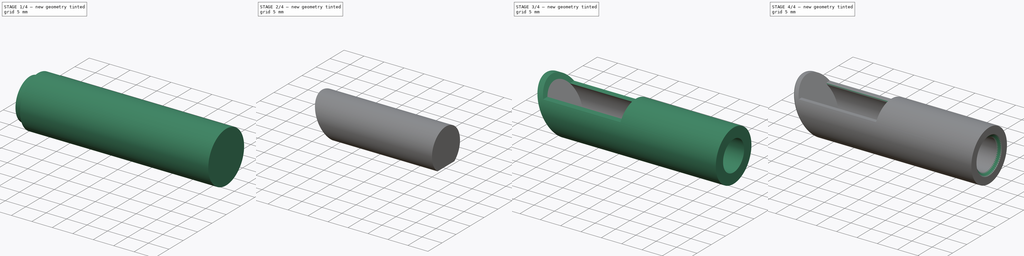
[diagram: build sequence overview — one tinted view per stage of 4, left to right]
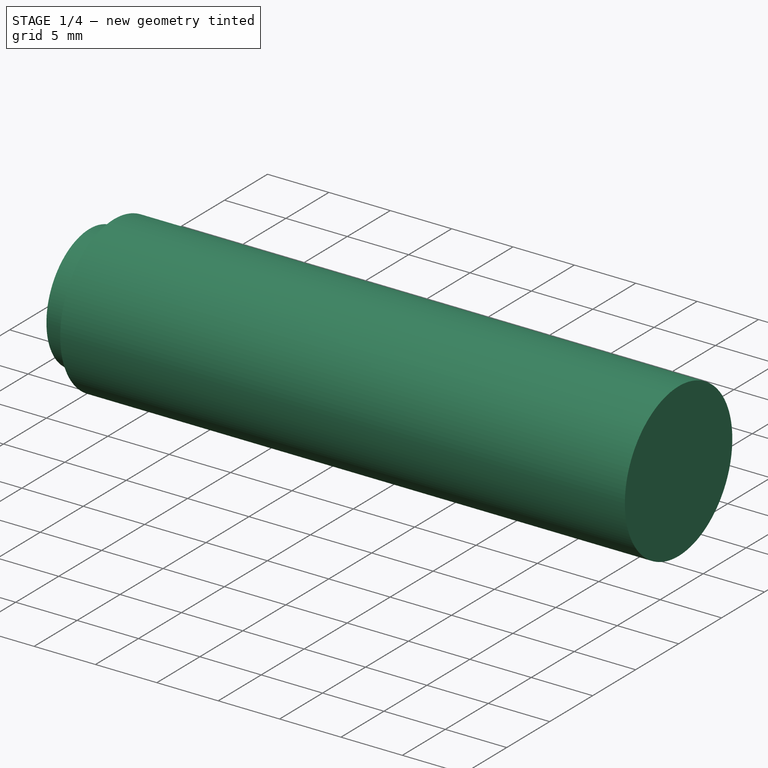
[diagram: stage 1 of 4 — iso view after this stage's code; geometry added in this stage tinted green]
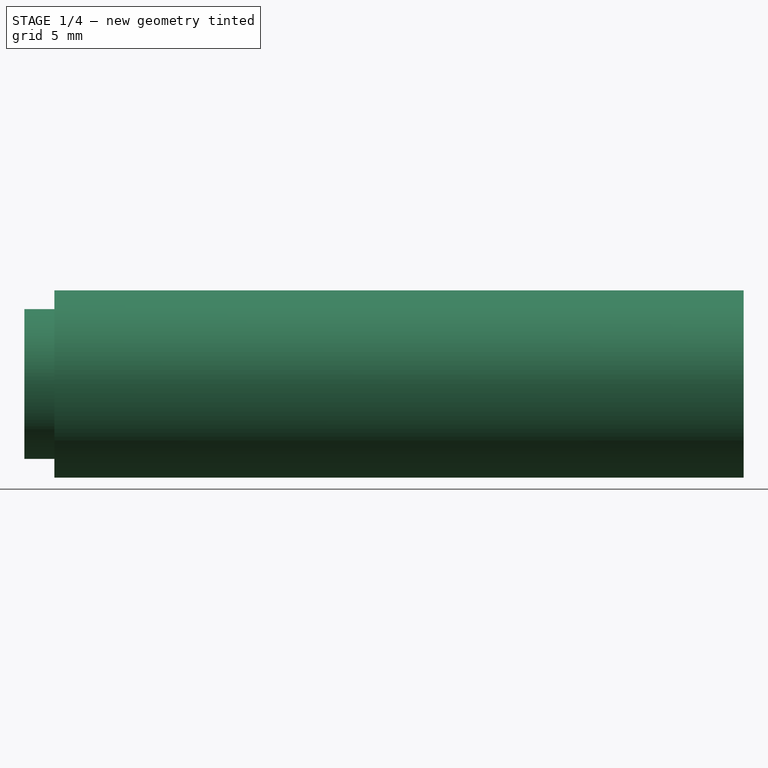
[diagram: stage 1 of 4 — front view after this stage's code; geometry added in this stage tinted green]
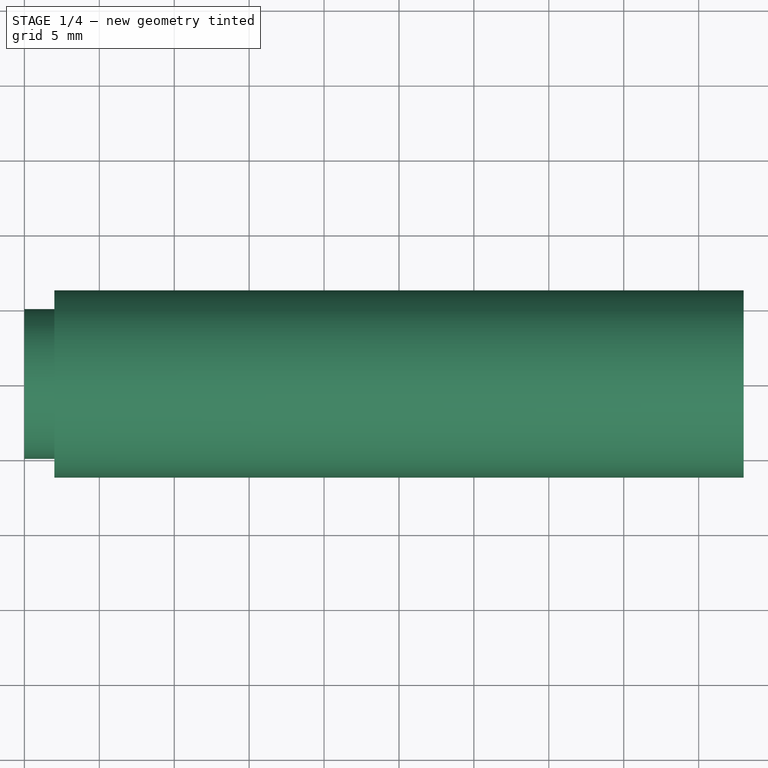
[diagram: stage 1 of 4 — top view after this stage's code; geometry added in this stage tinted green]
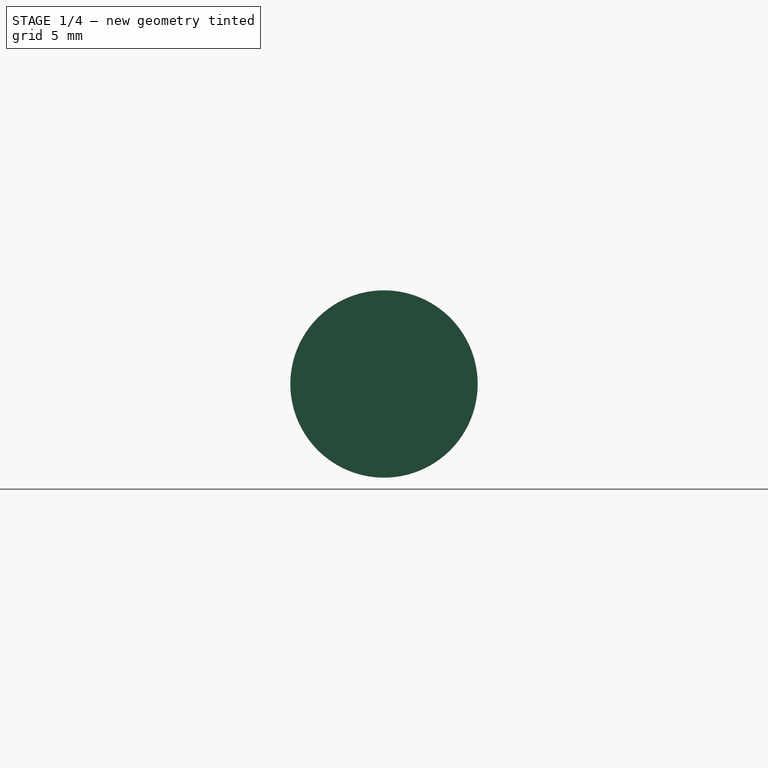
[diagram: stage 1 of 4 — right view after this stage's code; geometry added in this stage tinted green]
FCSTD DOCUMENT  (FreeCAD 0.20R29603 (Git))
Label: smallFloodLight
License: All rights reserved
LicenseURL: http://en.wikipedia.org/wiki/All_rights_reserved
objects: PartDesign::AdditiveCylinder×3, Sketcher::SketchObject×3, PartDesign::Pocket×3, PartDesign::Body×2, PartDesign::ShapeBinder×1, PartDesign::Boolean×1, PartDesign::Fillet×1, PartDesign::Chamfer×1
note: 23 computed .brp shape members not serialized (recipe doc carries the construction recipe); baked Part::Feature solids carry a one-line shape summary decoded from their .brp

FEATURE [PartDesign::AdditiveCylinder] Cylinder
  Angle = 360
  AttacherType = Attacher::AttachEngine3D
  AttachmentOffset = pos=(0,0,-23) rot=(0,0,1;0rad)
  FirstAngle = 0
  Height = 46
  MapMode = 5
  Placement = pos=(-23,5.1e-15,-5.1e-15) rot=(0.57735,0.57735,0.57735;2.0944rad)
  Radius = 6.25
  SecondAngle = 0
  Support = -> [YZ_Plane]
FEATURE [PartDesign::ShapeBinder] ShapeBinder
  Placement = pos=(-23,5e-15,-5e-15) rot=(0.57735,0.57735,0.57735;2.0944rad)
  Support = -> [Pocket]
  TraceSupport = false
FEATURE [PartDesign::AdditiveCylinder] Cylinder001
  Angle = 360
  AttacherType = Attacher::AttachEngine3D
  AttachmentOffset = pos=(0,0,-25) rot=(0,0,1;0rad)
  FirstAngle = 0
  Height = 35
  MapMode = 5
  Placement = pos=(-25,5.6e-15,-5.6e-15) rot=(0.57735,0.57735,0.57735;2.0944rad)
  Radius = 5
  SecondAngle = 0
  Support = -> [YZ_Plane001]
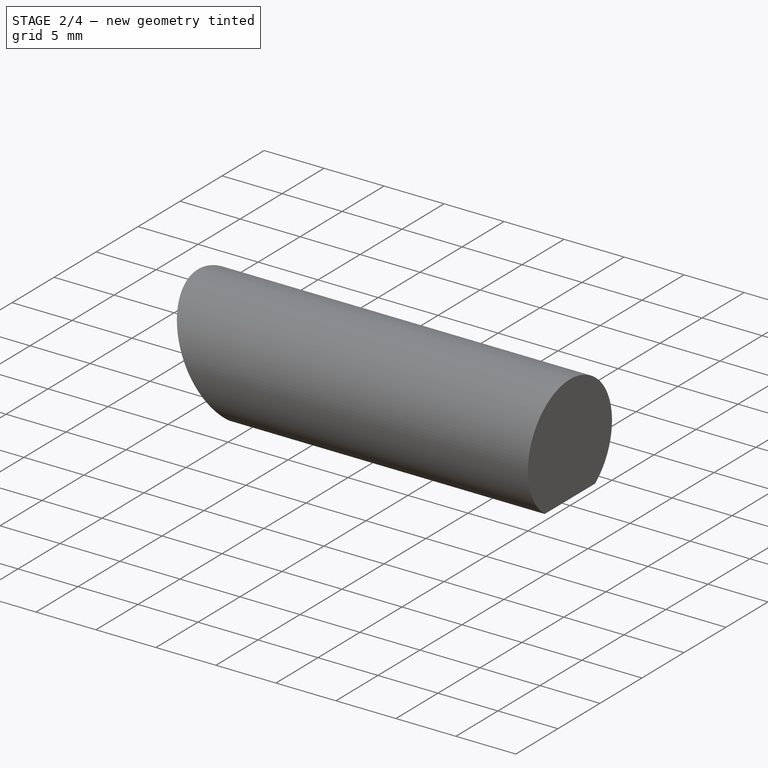
[diagram: stage 2 of 4 — iso view after this stage's code; geometry added in this stage tinted green]
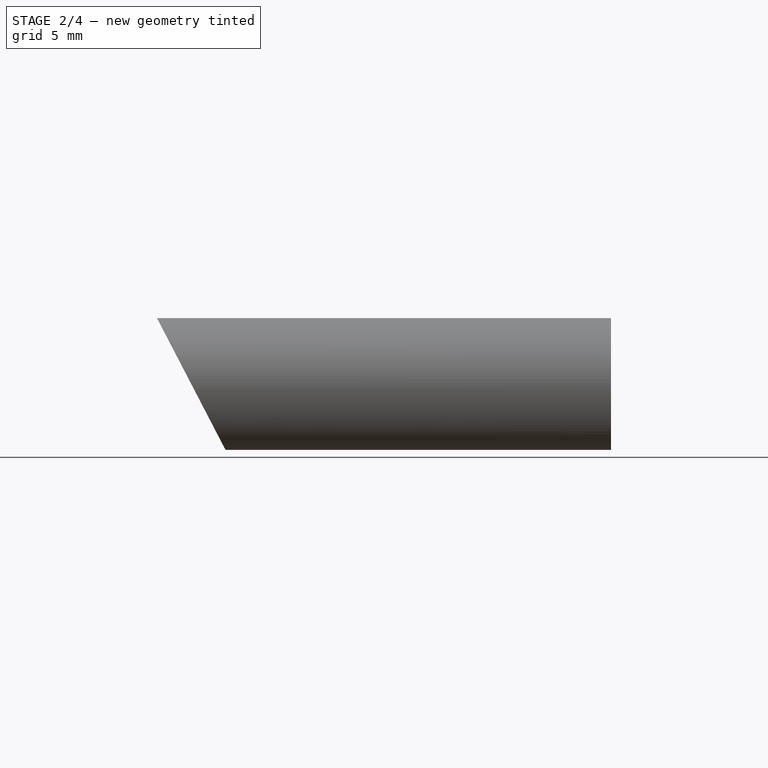
[diagram: stage 2 of 4 — front view after this stage's code; geometry added in this stage tinted green]
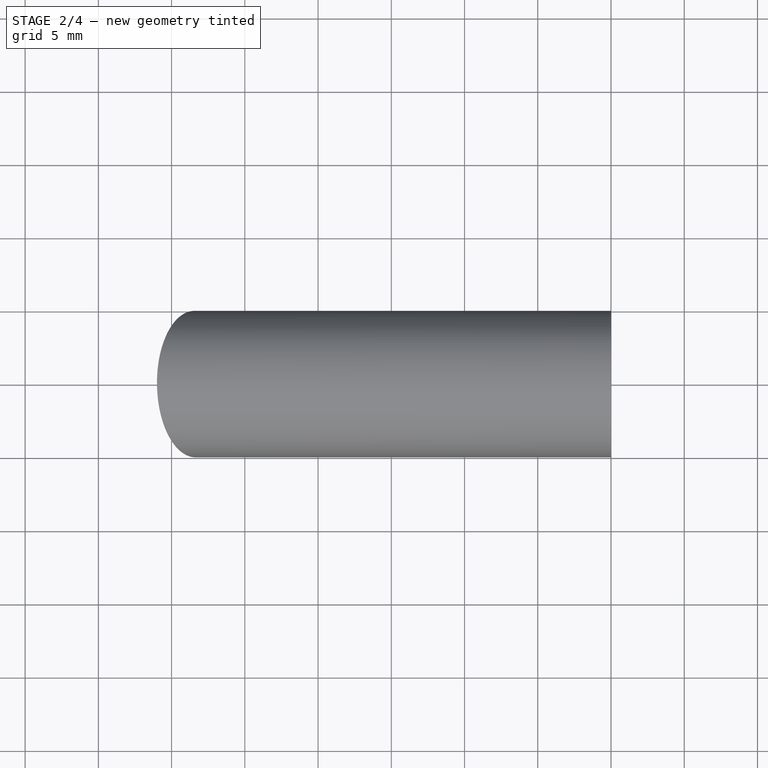
[diagram: stage 2 of 4 — top view after this stage's code; geometry added in this stage tinted green]
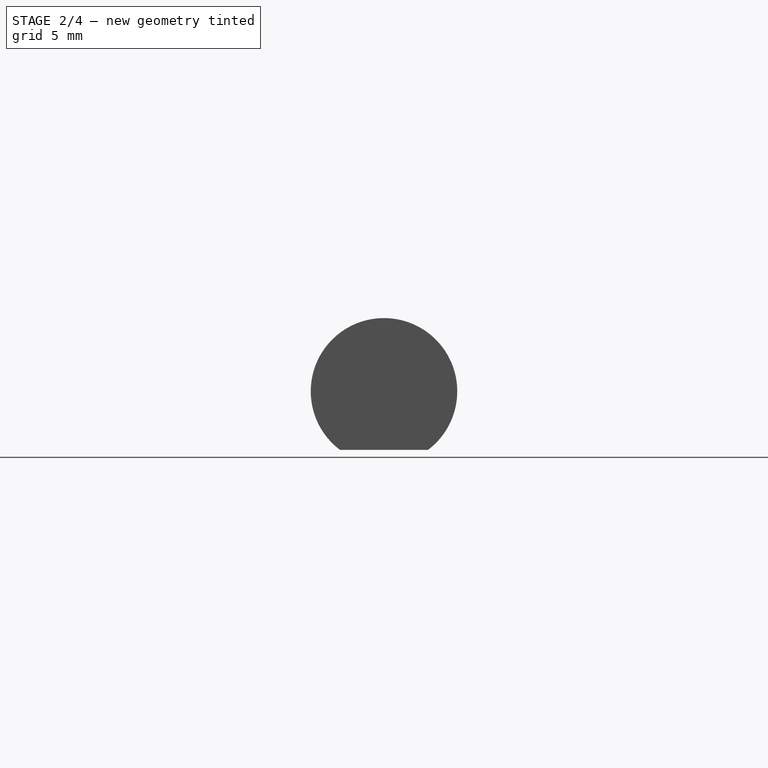
[diagram: stage 2 of 4 — right view after this stage's code; geometry added in this stage tinted green]
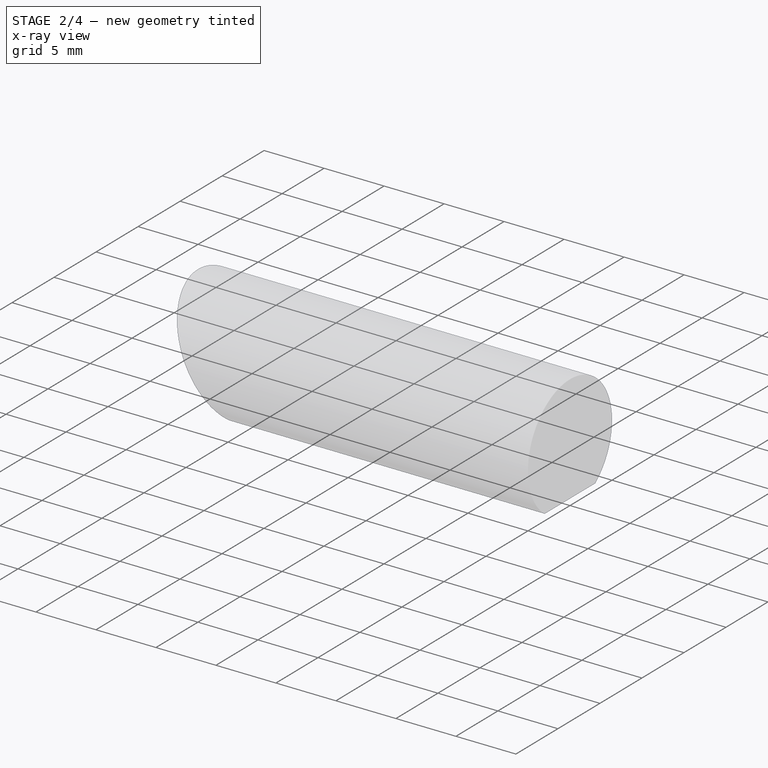
[diagram: stage 2 of 4 — x-ray composite at the iso view; earlier geometry ghosted, this stage's added geometry solid]
FEATURE [Sketcher::SketchObject] Sketch
  ExternalGeometry = -> [Cylinder]
  FullyConstrained = true
  MapMode = 5
  Placement = pos=(0,0,0) rot=(1,0,0;1.5708rad)
  Support = -> [XZ_Plane]
  expr: Constraints[6] = 38 - 31.5
  sketch-geometry (3):
    g0: LineSegment StartX=-23 StartY=6.25 StartZ=0 EndX=-16.5 EndY=-6.25 EndZ=0
    g1: LineSegment StartX=-16.5 StartY=-6.25 StartZ=0 EndX=-23 EndY=-6.25 EndZ=0
    g2: LineSegment StartX=-23 StartY=-6.25 StartZ=0 EndX=-23 EndY=6.25 EndZ=0
  constraints (7):
    c: Coincident(g-3,g0)
    c: Coincident(g0,g1)
    c: Coincident(g1,g-3)
    c: Horizontal(g1)
    c: Coincident(g1,g2)
    c: Coincident(g2,g0)
    c: DistanceX(g1,g1) = 6.5
FEATURE [PartDesign::Pocket] Pocket
  BaseFeature = -> Cylinder
  Direction = (0,1,-2e-16)
  Length = 5
  Length2 = 5
  Midplane = true
  Placement = pos=(-23,5e-15,-5e-15) rot=(0.57735,0.57735,0.57735;2.0944rad)
  Profile = -> Sketch
  ReferenceAxis = -> Sketch [N_Axis]
  Type = 1
FEATURE [Sketcher::SketchObject] Sketch001
  ExternalGeometry = -> [ShapeBinder,Cylinder001]
  FullyConstrained = true
  MapMode = 5
  Placement = pos=(0,0,0) rot=(1,0,0;1.5708rad)
  Support = -> [XZ_Plane001]
  sketch-geometry (7):
    g0: LineSegment StartX=-20.9975 StartY=5 StartZ=0 EndX=-25 EndY=5 EndZ=0
    g1: LineSegment StartX=-25 StartY=5 StartZ=0 EndX=-25 EndY=-5 EndZ=0
    g2: LineSegment StartX=-20.9975 StartY=5 StartZ=0 EndX=-22.0621 EndY=4.44638 EndZ=0
    g3: LineSegment StartX=-20.9975 StartY=5 StartZ=0 EndX=-16.3175 EndY=-4 EndZ=0
    g4: LineSegment StartX=-16.3175 StartY=-4 StartZ=0 EndX=10 EndY=-4 EndZ=0
    g5: LineSegment StartX=10 StartY=-4 StartZ=0 EndX=10 EndY=-5 EndZ=0
    g6: LineSegment StartX=10 StartY=-5 StartZ=0 EndX=-25 EndY=-5 EndZ=0
  constraints (19):
    c: Coincident(g0,g-4)
    c: Horizontal(g0)
    c: Coincident(g0,g1)
    c: Coincident(g1,g-4)
    c: PointOnObject(g2,g-3)
    c: Perpendicular(g-3,g2)
    c: Distance(g2) = 1.2
    c: Coincident(g0,g3)
    c: Coincident(g3,g4)
    c: Horizontal(g4)
    c: Coincident(g4,g5)
    c: Vertical(g5)
    c: Coincident(g5,g6)
    c: Coincident(g6,g1)
    c: Horizontal(g6)
    c: Coincident(g2,g0)
    c: Parallel(g-3,g3)
    c: DistanceY(g5,g5) = 1
    c: PointOnObject(g4,g-5)
FEATURE [PartDesign::Pocket] Pocket001
  BaseFeature = -> Cylinder001
  Direction = (0,1,2e-16)
  Length = 5
  Length2 = 5
  Midplane = true
  Placement = pos=(-25,6e-15,-6e-15) rot=(0.57735,0.57735,0.57735;2.0944rad)
  Profile = -> Sketch001
  ReferenceAxis = -> Sketch001 [N_Axis]
  Type = 1
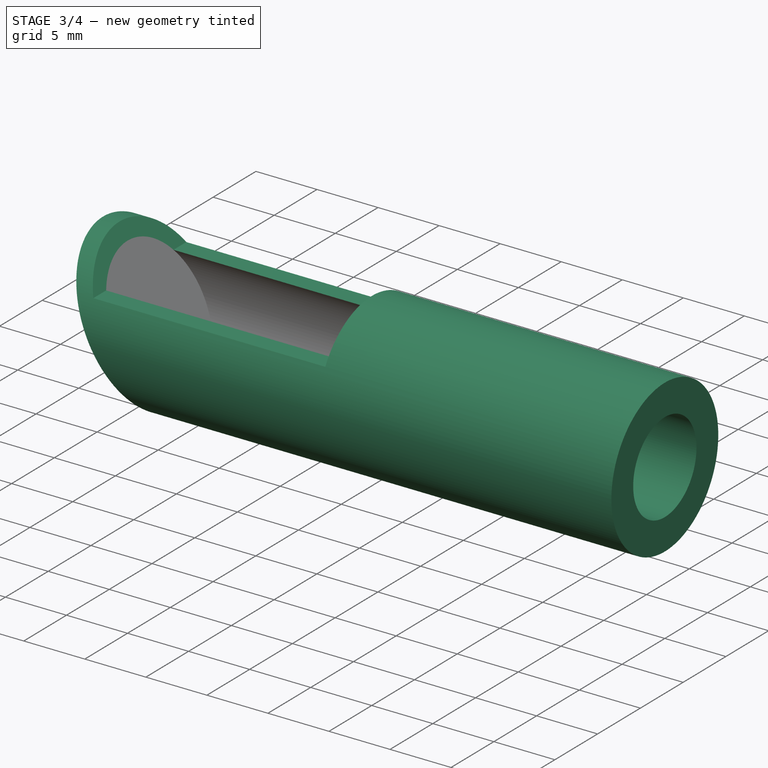
[diagram: stage 3 of 4 — iso view after this stage's code; geometry added in this stage tinted green]
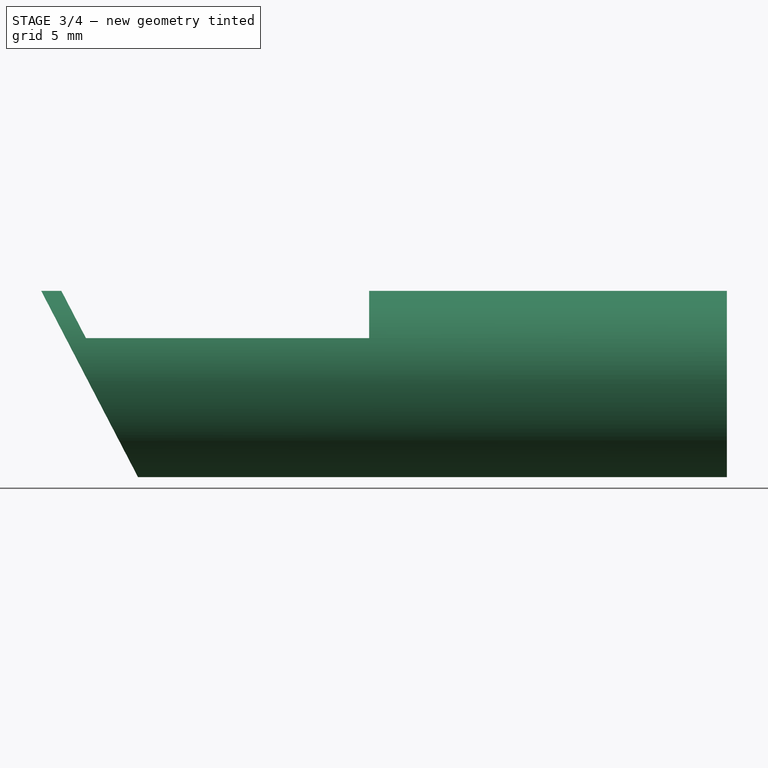
[diagram: stage 3 of 4 — front view after this stage's code; geometry added in this stage tinted green]
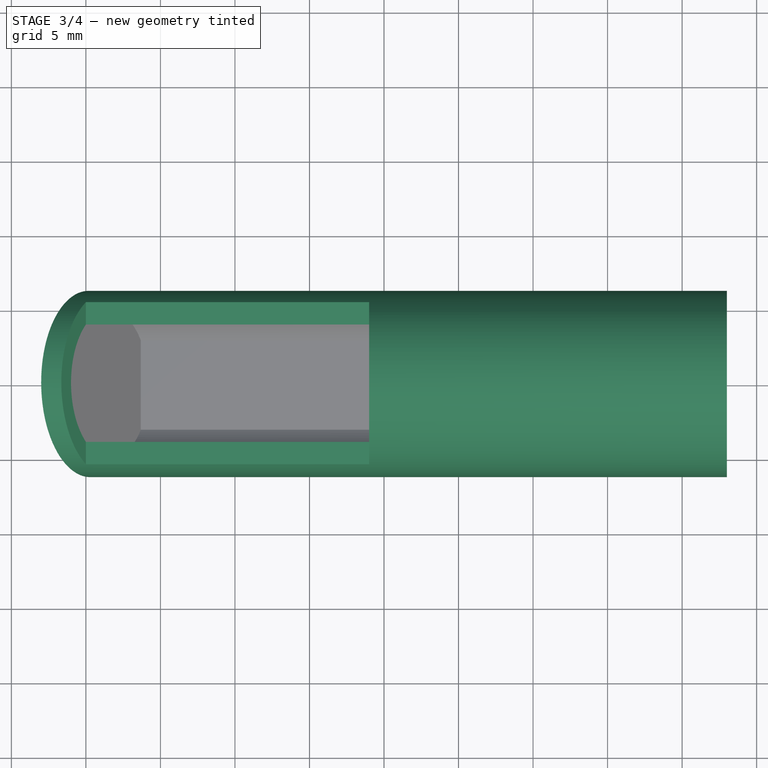
[diagram: stage 3 of 4 — top view after this stage's code; geometry added in this stage tinted green]
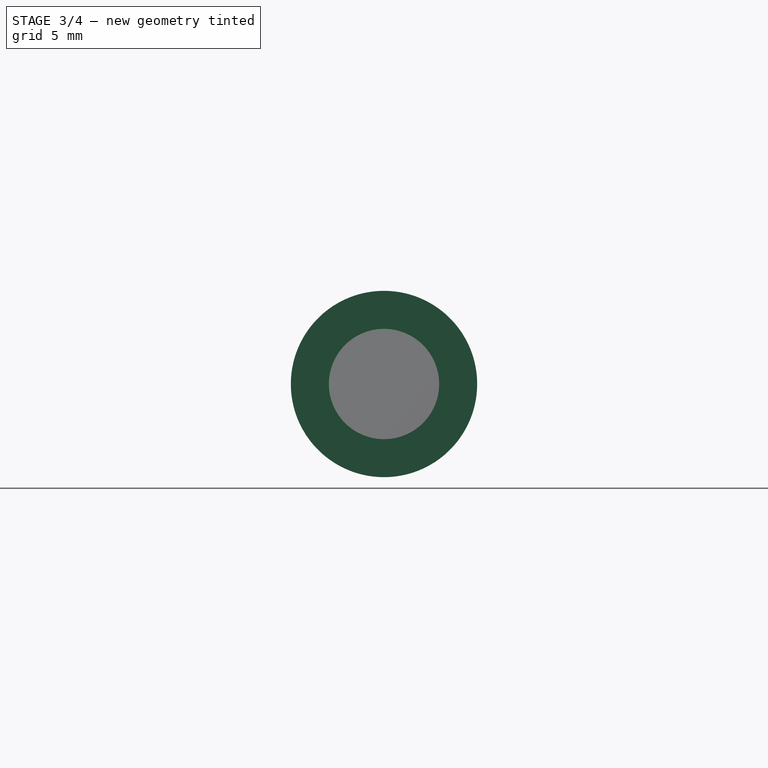
[diagram: stage 3 of 4 — right view after this stage's code; geometry added in this stage tinted green]
FEATURE [PartDesign::AdditiveCylinder] Cylinder002
  Angle = 360
  AttacherType = Attacher::AttachEngine3D
  AttachmentOffset = pos=(0,0,7) rot=(0,0,1;0rad)
  BaseFeature = -> Pocket001
  FirstAngle = 0
  Height = 17
  MapMode = 5
  Placement = pos=(7,-1.6e-15,1.6e-15) rot=(0.57735,0.57735,0.57735;2.0944rad)
  Radius = 3.7
  SecondAngle = 0
  Support = -> [YZ_Plane001]
FEATURE [PartDesign::Body] Body001  label="innerCutShape"
  Group = -> [ShapeBinder,Cylinder001,Sketch001,Pocket001,Cylinder002]
  Origin = -> Origin001
  Tip = -> Cylinder002
FEATURE [PartDesign::Boolean] Boolean
  BaseFeature = -> Pocket
  Group = -> [Body001]
  Type = 1
FEATURE [Sketcher::SketchObject] Sketch002
  ExternalGeometry = -> [Boolean]
  FullyConstrained = true
  MapMode = 5
  Placement = pos=(0,0,0) rot=(1,0,0;1.5708rad)
  Support = -> [XZ_Plane]
  sketch-geometry (4):
    g0: LineSegment StartX=-21.6475 StartY=6.25 StartZ=0 EndX=-20 EndY=3.08182 EndZ=0
    g1: LineSegment StartX=-20 StartY=3.08182 StartZ=0 EndX=-1 EndY=3.08182 EndZ=0
    g2: LineSegment StartX=-1 StartY=3.08182 StartZ=0 EndX=-1 EndY=6.25 EndZ=0
    g3: LineSegment StartX=-1 StartY=6.25 StartZ=0 EndX=-21.6475 EndY=6.25 EndZ=0
  constraints (12):
    c: PointOnObject(g0,g-4)
    c: Coincident(g0,g1)
    c: Horizontal(g1)
    c: Coincident(g1,g2)
    c: Vertical(g2)
    c: Coincident(g2,g3)
    c: Coincident(g3,g0)
    c: Horizontal(g3)
    c: Parallel(g0,g-4)
    c: Horizontal(g0,g-3)
    c: DistanceX(g-3,g2) = 22
    c: DistanceX(g1,g1) = 19
FEATURE [PartDesign::Pocket] Pocket002
  BaseFeature = -> Boolean
  Direction = (0,1,2e-16)
  Length = 5
  Length2 = 5
  Midplane = true
  Profile = -> Sketch002
  ReferenceAxis = -> Sketch002 [N_Axis]
  Type = 1
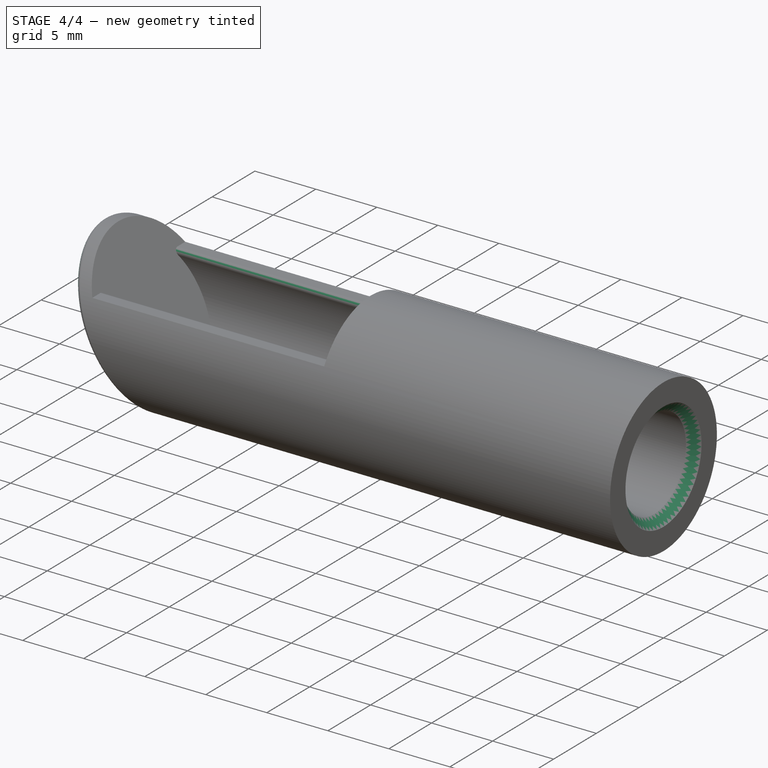
[diagram: stage 4 of 4 — iso view after this stage's code; geometry added in this stage tinted green]
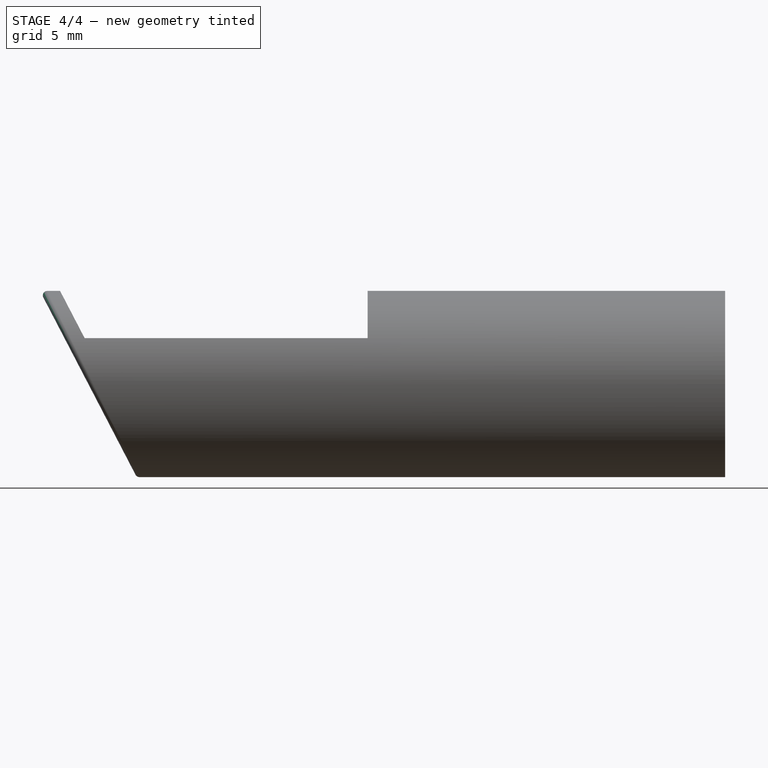
[diagram: stage 4 of 4 — front view after this stage's code; geometry added in this stage tinted green]
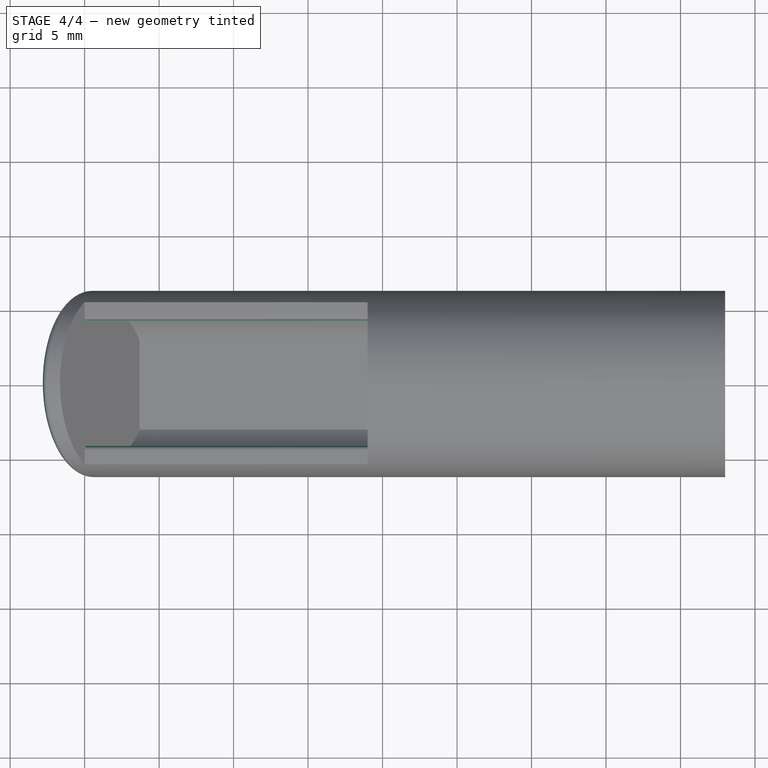
[diagram: stage 4 of 4 — top view after this stage's code; geometry added in this stage tinted green]
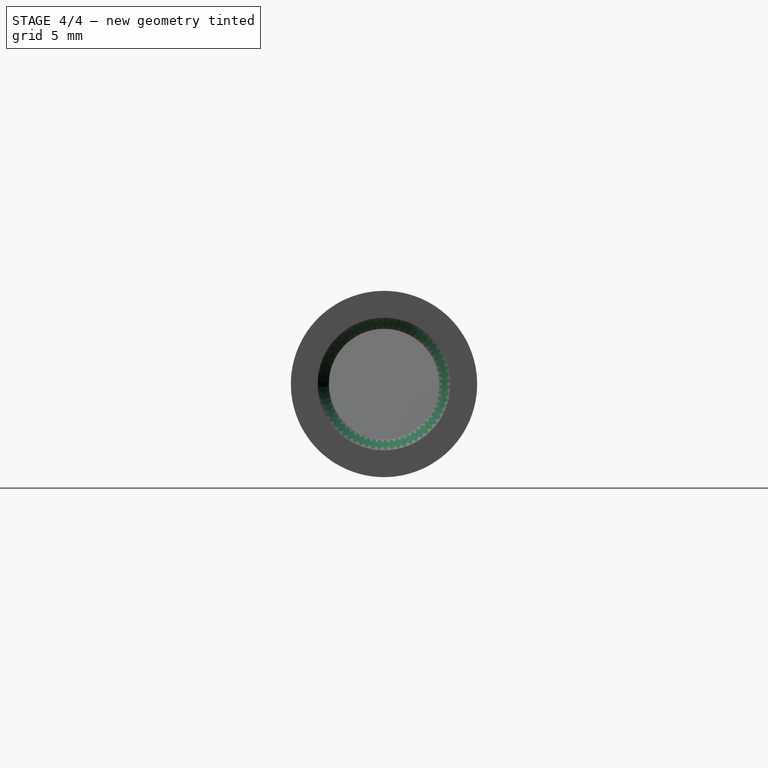
[diagram: stage 4 of 4 — right view after this stage's code; geometry added in this stage tinted green]
FEATURE [PartDesign::Fillet] Fillet
  Base = -> Pocket002 [Edge1,Edge17,Edge21]
  BaseFeature = -> Pocket002
  Radius = 0.3
  Refine = true
  SupportTransform = false
  UseAllEdges = false
FEATURE [PartDesign::Chamfer] Chamfer
  Angle = 45
  Base = -> Fillet [Edge12]
  BaseFeature = -> Fillet
  ChamferType = 0
  FlipDirection = false
  Size = 0.75
  Size2 = 1
  SupportTransform = false
  UseAllEdges = false
FEATURE [PartDesign::Body] Body  label="outerShape"
  Group = -> [Cylinder,Sketch,Pocket,Boolean,Sketch002,Pocket002,Fillet,Chamfer]
  Origin = -> Origin
  Tip = -> Chamfer
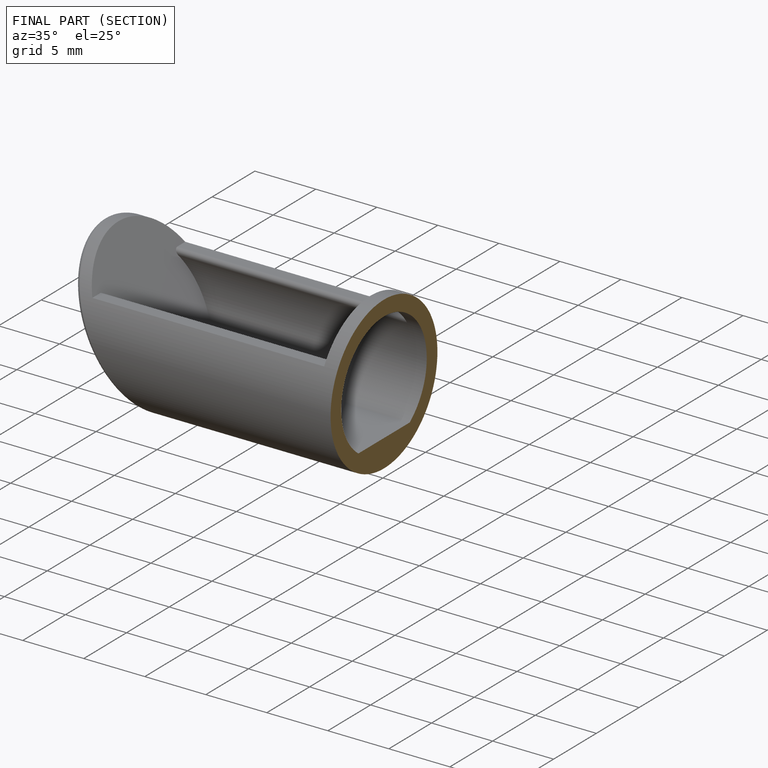
[diagram: finished part — half-section view (interior)]
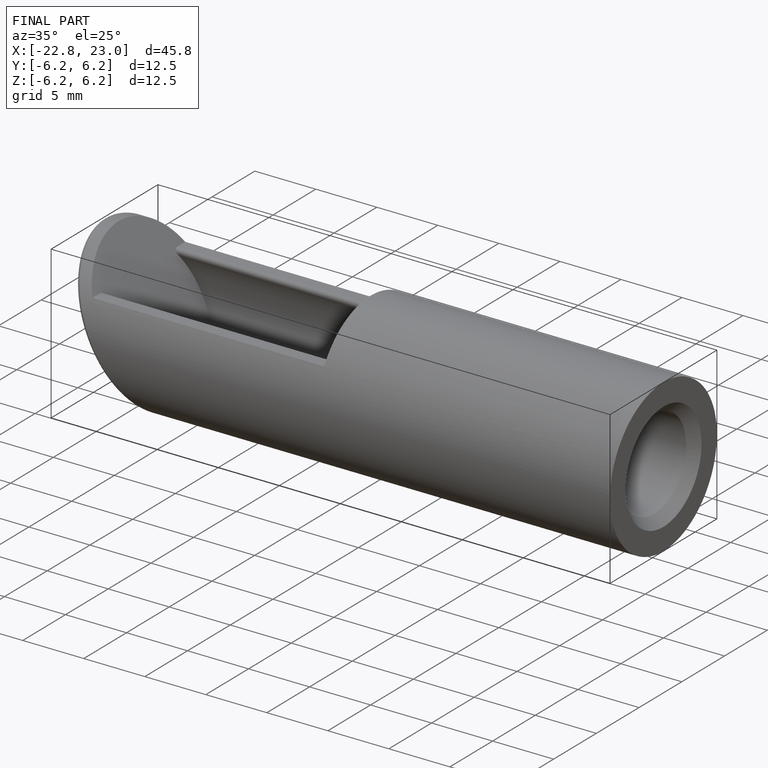
[diagram: finished part — iso view with bounding-box wireframe]
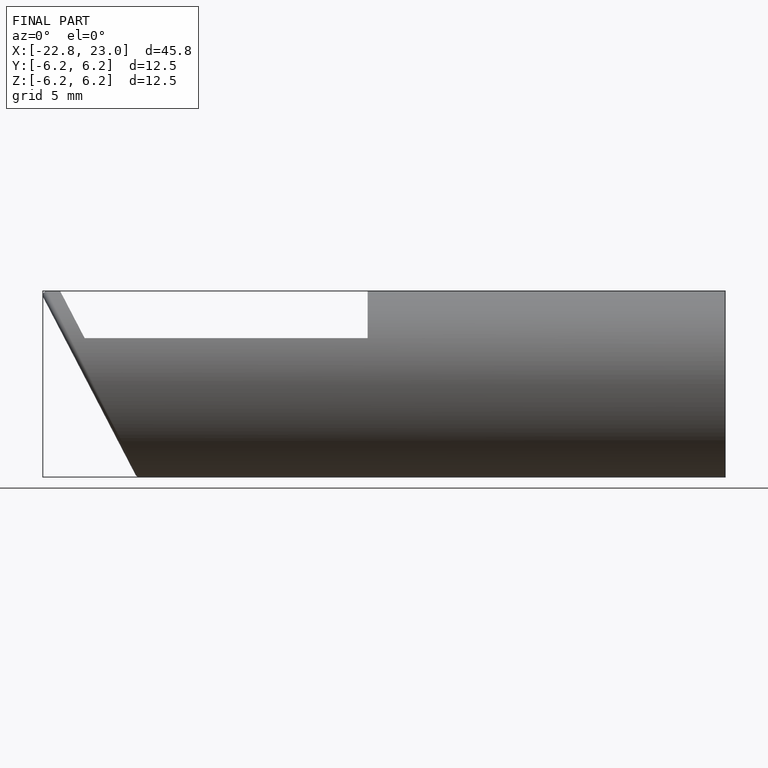
[diagram: finished part — front view with bounding-box wireframe]
